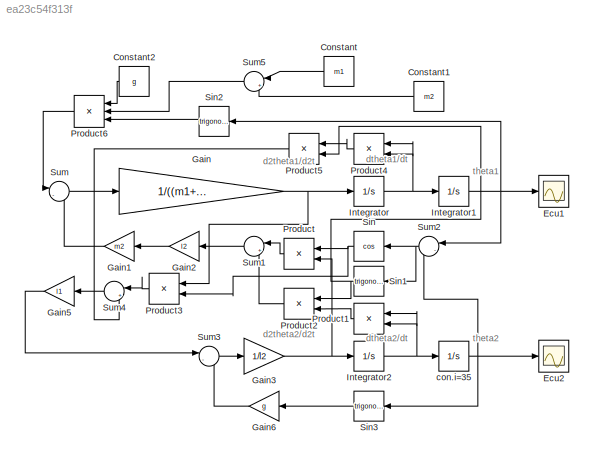
MODEL slx_ea23c54f313f
KIND model
CONFIG AbsTol = auto
CONFIG EnableMultiTasking = off
CONFIG FixedStep = auto
CONFIG MaxStep = auto
CONFIG MinStep = auto
CONFIG RelTol = 1e-3
CONFIG SampleTimeConstraint = Unconstrained
CONFIG SolverName = VariableStepAuto
CONFIG StartTime = 0.0
CONFIG StopTime = 10
BLOCK [Constant] Constant
  NameLocation = top
  Value = m1
BLOCK [Constant] Constant1
  NameLocation = top
  Value = m2
BLOCK [Constant] Constant2
  NameLocation = top
  Value = g
BLOCK [Scope] Ecu1
  Floating = off
  NumInputPorts = 1
  ScopeSpecificationString = Simulink.scopes.TimeScopeBlockCfg('CurrentConfiguration', extmgr.ConfigurationSet(extmgr.Configuration('Core','General UI',true),extmgr.Configuration('Core','Source UI',true),extmgr.Configuration('Sources','WiredSimulink',true),extmgr.Configuration('Visuals','Time Domain',true,'SerializedDisplays',{struct('MinYLimReal','-0.38617','MaxYLimReal','0.38337','YLabelReal','','MinYLimMag','0.00000','MaxY...<+1360ch>
BLOCK [Scope] Ecu2
  Floating = off
  NumInputPorts = 1
  ScopeSpecificationString = Simulink.scopes.TimeScopeBlockCfg('CurrentConfiguration', extmgr.ConfigurationSet(extmgr.Configuration('Core','General UI',true),extmgr.Configuration('Core','Source UI',true),extmgr.Configuration('Sources','WiredSimulink',true,'DataLoggingVariableName','ScopeData1'),extmgr.Configuration('Visuals','Time Domain',true,'SerializedDisplays',{struct('MinYLimReal','-0.73766','MaxYLimReal','0.7607','YLabe...<+1392ch>
BLOCK [Gain] Gain
  Gain = 1/((m1+m2)*l1)
BLOCK [Gain] Gain1
  Gain = m2
  NameLocation = top
BLOCK [Gain] Gain2
  Gain = l2
  NameLocation = top
BLOCK [Gain] Gain3
  Gain = 1/l2
BLOCK [Gain] Gain5
  Gain = l1
  NameLocation = top
BLOCK [Gain] Gain6
  Gain = g
  NameLocation = top
BLOCK [Integrator] Integrator
BLOCK [Integrator] Integrator1
BLOCK [Integrator] Integrator2
BLOCK [Product] Product
  NameLocation = top
BLOCK [Product] Product1
  NameLocation = top
BLOCK [Product] Product2
  NameLocation = top
BLOCK [Product] Product3
  NameLocation = top
BLOCK [Product] Product4
  NameLocation = top
BLOCK [Product] Product5
  NameLocation = top
BLOCK [Product] Product6
  Inputs = 3
  NameLocation = top
BLOCK [Trigonometry] Sin
  NameLocation = top
  Operator = cos
BLOCK [Trigonometry] Sin1
  NameLocation = top
BLOCK [Trigonometry] Sin2
  NameLocation = top
BLOCK [Trigonometry] Sin3
  NameLocation = top
BLOCK [Sum] Sum
  Inputs = |-|-
BLOCK [Sum] Sum1
  Inputs = |+|-
  NameLocation = top
BLOCK [Sum] Sum2
  Inputs = |-|+
  NameLocation = top
BLOCK [Sum] Sum3
  Inputs = |-|-
BLOCK [Sum] Sum4
  Inputs = |+|+
  NameLocation = top
BLOCK [Sum] Sum5
  Inputs = |+|+
  NameLocation = top
BLOCK [Integrator] con.i=35
  InitialCondition = (35*pi)/180
ANNOTATION (root): d2theta1/d2t
ANNOTATION (root): d2theta2/d2t
ANNOTATION (root): dtheta1/dt
ANNOTATION (root): dtheta2/dt
ANNOTATION (root): theta1
ANNOTATION (root): theta2
LINE Constant1:1 -> Sum5:2
LINE Constant2:1 -> Product6:1
LINE Constant:1 -> Sum5:1
LINE Gain1:1 -> Sum:2
LINE Gain2:1 -> Gain1:1
NET Gain3:1 -> Integrator2:1, Product:2
LINE Gain5:1 -> Sum3:1
LINE Gain6:1 -> Sum3:2
NET Gain:1 -> Integrator:1, Product3:1
NET Integrator1:1 -> Ecu1:1, Sin2:1, Sum2:1
NET Integrator2:1 -> Product1:1, Product1:2, con.i=35:1
NET Integrator:1 -> Integrator1:1, Product4:1, Product4:2
LINE Product1:1 -> Product2:2
LINE Product2:1 -> Sum1:2
LINE Product3:1 -> Sum4:1
LINE Product4:1 -> Product5:1
LINE Product5:1 -> Sum4:2
LINE Product6:1 -> Sum:1
LINE Product:1 -> Sum1:1
NET Sin1:1 -> Product2:1, Product5:2
LINE Sin2:1 -> Product6:3
LINE Sin3:1 -> Gain6:1
NET Sin:1 -> Product3:2, Product:1
LINE Sum1:1 -> Gain2:1
NET Sum2:1 -> Sin1:1, Sin:1
LINE Sum3:1 -> Gain3:1
LINE Sum4:1 -> Gain5:1
LINE Sum5:1 -> Product6:2
LINE Sum:1 -> Gain:1
NET con.i=35:1 -> Ecu2:1, Sin3:1, Sum2:2
note: NET lines group one-source signal fan-out (src -> all destinations, sorted); 1:1 wires keep LINE
